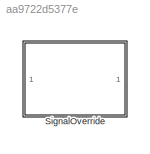
MODEL slx_aa9722d5377e
KIND library
CONFIG AbsTol = auto
CONFIG EnableMultiTasking = off
CONFIG FixedStep = auto
CONFIG MaxStep = auto
CONFIG MinStep = auto
CONFIG RelTol = 1e-3
CONFIG SampleTimeConstraint = Unconstrained
CONFIG SolverName = VariableStepAuto
CONFIG StartTime = 0.0
CONFIG StopTime = 10.0
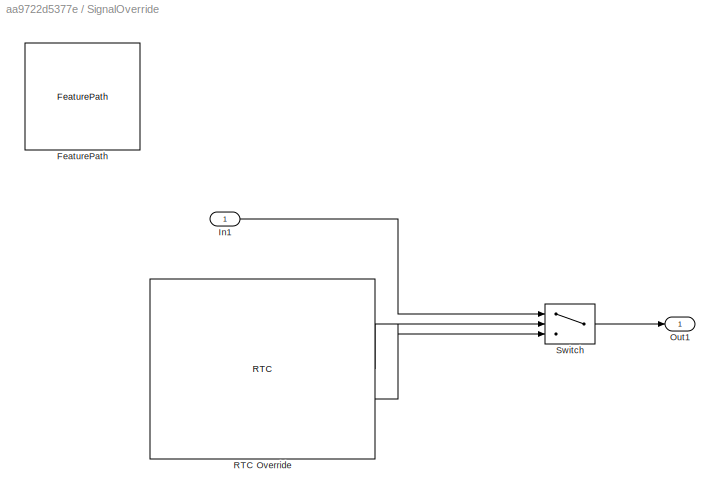
BLOCK [SubSystem] SignalOverride
  MoveFcn = SignalOverrideMask.CB_TriggerInit(gcbh);
BLOCK [Reference] SignalOverride/FeaturePath  REF=FeaturePath/FeaturePath
  SourceBlock = FeaturePath/FeaturePath
  SourceType = Talaria Feature Path
BLOCK [Inport] SignalOverride/In1
BLOCK [Outport] SignalOverride/Out1
  VectorParamsAs1DForOutWhenUnconnected = off
BLOCK [Reference] SignalOverride/RTC Override  REF=RTC/RTC
  Description = Enables a signal to be overridden by a runtime request (RTC).
  SourceBlock = RTC/RTC
  SourceType = Talaria RTC Receive
BLOCK [Switch] SignalOverride/Switch
  Criteria = u2 > Threshold
  InputSameDT = off
  SaturateOnIntegerOverflow = off
LINE SignalOverride/In1:1 -> SignalOverride/Switch:1
LINE SignalOverride/RTC Override:1 -> SignalOverride/Switch:2
LINE SignalOverride/RTC Override:2 -> SignalOverride/Switch:3
LINE SignalOverride/Switch:1 -> SignalOverride/Out1:1
